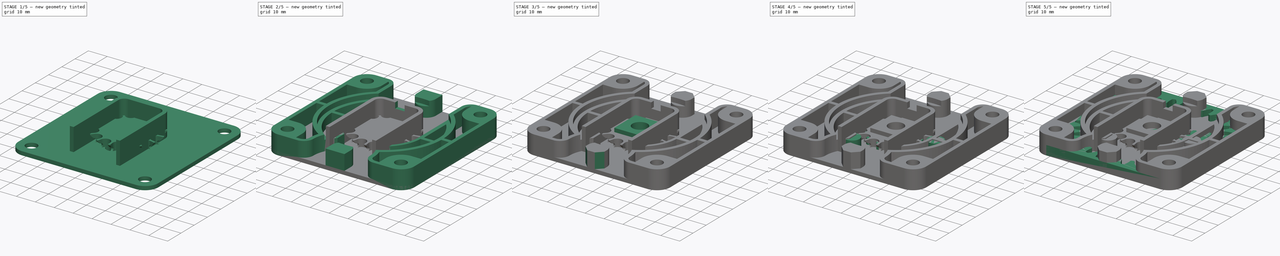
[diagram: build sequence overview — one tinted view per stage of 5, left to right]
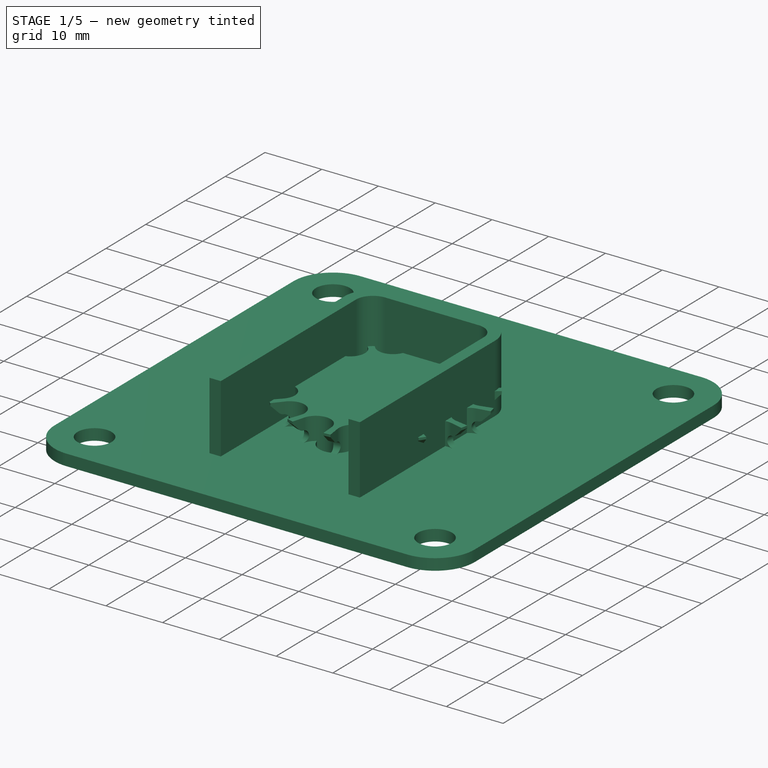
[diagram: stage 1 of 5 — iso view after this stage's code; geometry added in this stage tinted green]
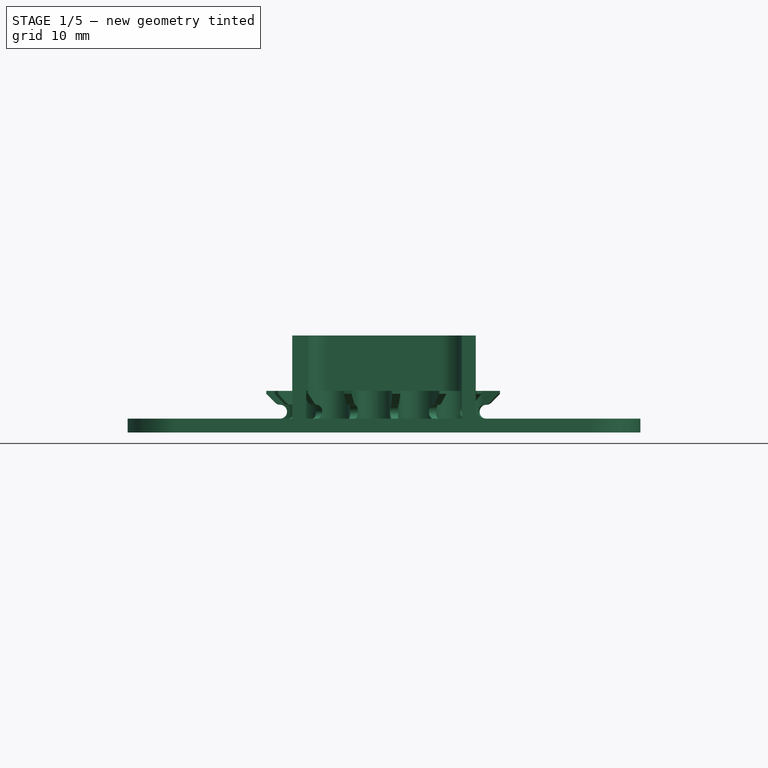
[diagram: stage 1 of 5 — front view after this stage's code; geometry added in this stage tinted green]
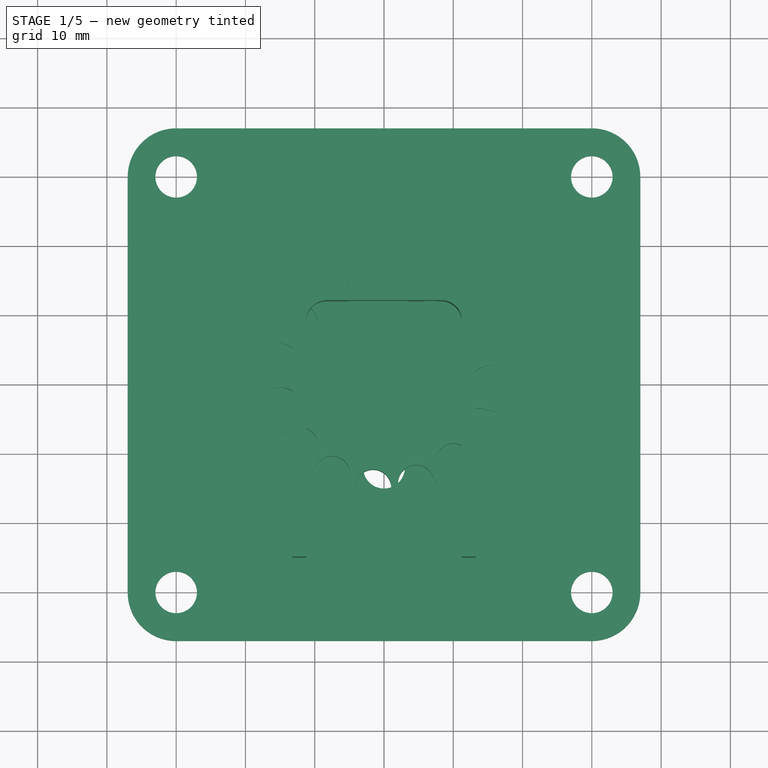
[diagram: stage 1 of 5 — top view after this stage's code; geometry added in this stage tinted green]
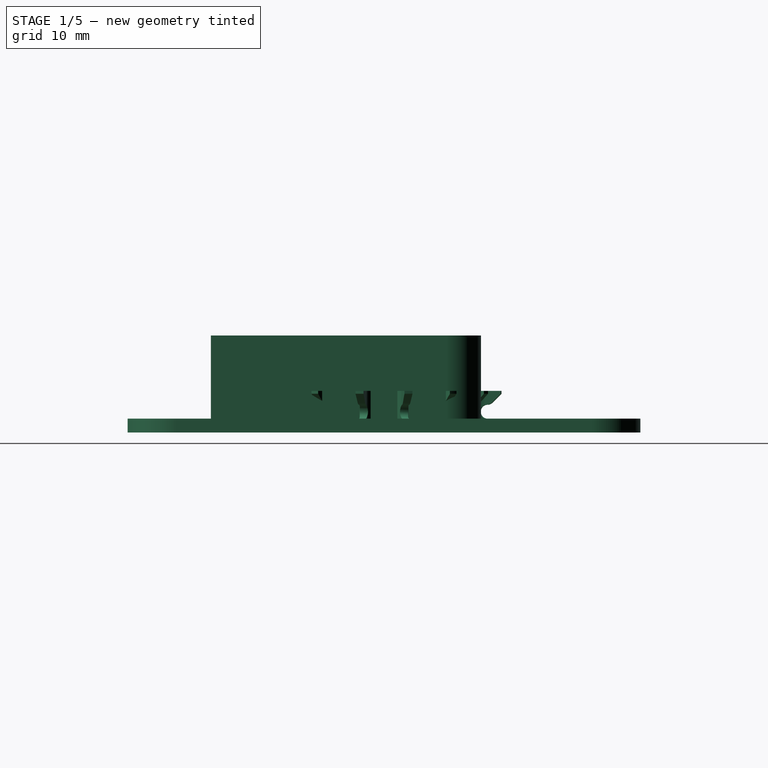
[diagram: stage 1 of 5 — right view after this stage's code; geometry added in this stage tinted green]
FCSTD DOCUMENT  (FreeCAD 0.19R24366 (Git))
Label: planetary_shutter_v2
License: All rights reserved
LicenseURL: http://en.wikipedia.org/wiki/All_rights_reserved
objects: Sketcher::SketchObject×13, PartDesign::Body×9, PartDesign::Pocket×8, PartDesign::Pad×7, PartDesign::Mirrored×4, Part::Part2DObjectPython×3, PartDesign::AdditiveCylinder×3, PartDesign::PolarPattern×3, PartDesign::MultiTransform×3, PartDesign::FeatureBase×2, PartDesign::SubtractiveBox×2, PartDesign::SubtractiveCylinder×2, PartDesign::Chamfer×1, PartDesign::Groove×1, PartDesign::AdditiveBox×1
note: 87 computed .brp shape members not serialized (recipe doc carries the construction recipe); baked Part::Feature solids carry a one-line shape summary decoded from their .brp

FEATURE [PartDesign::Body] Body005  label="Carrier"
  Group = -> [Sketch003,Pad004,Cylinder,PolarPattern,Box,Cylinder001,MultiTransform,Mirrored,PolarPattern001]
  Origin = -> Origin005
  Placement = pos=(0,0,-2) rot=(0,0,1;0rad)
  Tip = -> MultiTransform
FEATURE [PartDesign::AdditiveCylinder] Cylinder002
  Angle = 360
  AttacherType = Attacher::AttachEngine3D
  Height = 6
  MapMode = 5
  Radius = 17
  Support = -> [XY_Plane006]
FEATURE [Sketcher::SketchObject] Sketch010
  FullyConstrained = true
  MapMode = 5
  Support = -> [XY_Plane008]
  sketch-geometry (14):
    g0: LineSegment StartX=-30 StartY=37 StartZ=0 EndX=30 EndY=37 EndZ=0
    g1: LineSegment StartX=37 StartY=30 StartZ=0 EndX=37 EndY=-30 EndZ=0
    g2: LineSegment StartX=30 StartY=-37 StartZ=0 EndX=-30 EndY=-37 EndZ=0
    g3: LineSegment StartX=-37 StartY=-30 StartZ=0 EndX=-37 EndY=30 EndZ=0
    g4: ArcOfCircle CenterX=-30 CenterY=30 CenterZ=0 NormalX=0 NormalY=0 NormalZ=1 AngleXU=0 Radius=7 StartAngle=1.5708 EndAngle=3.14159
    g5: ArcOfCircle CenterX=30 CenterY=30 CenterZ=0 NormalX=0 NormalY=0 NormalZ=1 AngleXU=0 Radius=7 StartAngle=0 EndAngle=1.5708
    g6: ArcOfCircle CenterX=30 CenterY=-30 CenterZ=0 NormalX=0 NormalY=0 NormalZ=1 AngleXU=0 Radius=7 StartAngle=4.71239 EndAngle=6.28319
    g7: ArcOfCircle CenterX=-30 CenterY=-30 CenterZ=0 NormalX=0 NormalY=0 NormalZ=1 AngleXU=0 Radius=7 StartAngle=3.14159 EndAngle=4.71239
    g8: Circle CenterX=30 CenterY=30 CenterZ=0 NormalX=0 NormalY=0 NormalZ=1 AngleXU=0 Radius=3
    g9: Circle CenterX=30 CenterY=-30 CenterZ=0 NormalX=0 NormalY=0 NormalZ=1 AngleXU=0 Radius=3
    g10: Circle CenterX=-30 CenterY=-30 CenterZ=0 NormalX=0 NormalY=0 NormalZ=1 AngleXU=0 Radius=3
    g11: Circle CenterX=-30 CenterY=30 CenterZ=0 NormalX=0 NormalY=0 NormalZ=1 AngleXU=0 Radius=3
    g12: Circle CenterX=0 CenterY=0 CenterZ=0 NormalX=0 NormalY=0 NormalZ=1 AngleXU=0 Radius=3
    g13: Circle CenterX=0 CenterY=-12 CenterZ=0 NormalX=0 NormalY=0 NormalZ=1 AngleXU=0 Radius=3
  constraints (32):
    c: Horizontal(g0)
    c: Horizontal(g2)
    c: Vertical(g1)
    c: Vertical(g3)
    c: Tangent(g3,g4) = 1.5708
    c: Tangent(g0,g4) = 1.5708
    c: Tangent(g0,g5) = 1.5708
    c: Tangent(g1,g5) = 1.5708
    c: Tangent(g1,g6) = 1.5708
    c: Tangent(g2,g6) = 1.5708
    c: Tangent(g2,g7) = 1.5708
    c: Tangent(g3,g7) = 1.5708
    c: DistanceX(g3,g1) = 74
    c: Equal(g4,g5)
    c: Equal(g5,g7)
    c: Equal(g7,g6)
    c: Equal(g3,g0)
    c: Symmetric(g4,g6,g-1)
    c: Radius(g5) = 7
    c: Coincident(g8,g5)
    c: Coincident(g9,g6)
    c: Coincident(g10,g7)
    c: Coincident(g11,g4)
    c: Equal(g11,g8)
    c: Equal(g8,g9)
    c: Equal(g9,g10)
    c: Radius(g8) = 3
    c: Coincident(g12,g-1)
    c: Radius(g12) = 3
    c: PointOnObject(g13,g-2)
    c: Radius(g13) = 3
    c: DistanceY(g13,g12) = 12
FEATURE [PartDesign::Pad] Pad006
  Direction = (1,1,1)
  Length = 2
  Length2 = 100
  Profile = -> Sketch010
  Type = 0
FEATURE [PartDesign::Body] Body007  label="BodyBottom"
  Group = -> [Sketch004,Pad005,Pocket005,Sketch005,Pocket003,Sketch007,Sketch008,Pocket006,MultiTransform001,Mirrored001,Sketch009,Pocket007,MultiTransform002,Mirrored003,Mirrored004,Cylinder005,Chamfer]
  Origin = -> Origin007
  Placement = pos=(0,0,-10) rot=(0,0,1;0rad)
  Tip = -> Chamfer
FEATURE [Sketcher::SketchObject] Sketch011
  AttachmentOffset = pos=(0,0,2) rot=(0,0,1;0rad)
  FullyConstrained = true
  MapMode = 5
  Placement = pos=(0,0,2) rot=(0,0,1;0rad)
  Support = -> [XY_Plane008]
  sketch-geometry (12):
    g0: LineSegment StartX=-8.25 StartY=12 StartZ=0 EndX=8.25 EndY=12 EndZ=0
    g1: LineSegment StartX=11.25 StartY=9 StartZ=0 EndX=11.25 EndY=-25 EndZ=0
    g2: LineSegment StartX=-11.25 StartY=-25 StartZ=0 EndX=-11.25 EndY=9 EndZ=0
    g3: LineSegment StartX=-8.25 StartY=14 StartZ=0 EndX=8.25 EndY=14 EndZ=0
    g4: LineSegment StartX=13.25 StartY=9 StartZ=0 EndX=13.25 EndY=-25 EndZ=0
    g5: LineSegment StartX=13.25 StartY=-25 StartZ=0 EndX=11.25 EndY=-25 EndZ=0
    g6: LineSegment StartX=-13.25 StartY=-25 StartZ=0 EndX=-13.25 EndY=9 EndZ=0
    g7: LineSegment StartX=-11.25 StartY=-25 StartZ=0 EndX=-13.25 EndY=-25 EndZ=0
    g8: ArcOfCircle CenterX=8.25 CenterY=9 CenterZ=0 NormalX=0 NormalY=0 NormalZ=1 AngleXU=0 Radius=3 StartAngle=0 EndAngle=1.5708
    g9: ArcOfCircle CenterX=8.25 CenterY=9 CenterZ=0 NormalX=0 NormalY=0 NormalZ=1 AngleXU=0 Radius=5 StartAngle=0 EndAngle=1.5708
    g10: ArcOfCircle CenterX=-8.25 CenterY=9 CenterZ=0 NormalX=0 NormalY=0 NormalZ=1 AngleXU=0 Radius=3 StartAngle=1.5708 EndAngle=3.14159
    g11: ArcOfCircle CenterX=-8.25 CenterY=9 CenterZ=0 NormalX=0 NormalY=0 NormalZ=1 AngleXU=0 Radius=5 StartAngle=1.5708 EndAngle=3.14159
  constraints (30):
    c: Vertical(g1)
    c: Vertical(g2)
    c: Coincident(g4,g5)
    c: Coincident(g7,g6)
    c: Vertical(g4)
    c: Vertical(g6)
    c: Coincident(g5,g1)
    c: Coincident(g7,g2)
    c: Tangent(g5,g7)
    c: DistanceX(g2,g1) = 22.5
    c: DistanceX(g6,g2) = 2
    c: Tangent(g0,g8) = 1.5708
    c: Tangent(g1,g8) = 1.5708
    c: Tangent(g3,g9) = 1.5708
    c: Tangent(g4,g9) = 1.5708
    c: Tangent(g2,g10) = 1.5708
    c: Tangent(g0,g10) = 1.5708
    c: Tangent(g6,g11) = 1.5708
    c: Tangent(g3,g11) = 1.5708
    c: Equal(g10,g8)
    c: Equal(g11,g9)
    c: DistanceY(g0,g3) = 2
    c: Radius(g8) = 3
    c: Radius(g9) = 5
    c: Symmetric(g2,g1,g-2)
    c: Horizontal(g0)
    c: Horizontal(g3)
    c: DistanceY(g-1,g0) = 12
    c: DistanceY(g6,g0) = 37
    c: Symmetric(g6,g4,g-2)
FEATURE [PartDesign::Pad] Pad007
  BaseFeature = -> Pad006
  Direction = (1,1,1)
  Length = 12
  Length2 = 100
  Profile = -> Sketch011
  Type = 0
FEATURE [PartDesign::Body] Body008  label="BodyTop"
  Group = -> [Sketch010,Pad006,Sketch011,Pad007,Box002]
  Origin = -> Origin008
  Placement = pos=(0,0,5) rot=(0,0,1;0rad)
  Tip = -> Box002
FEATURE [Sketcher::SketchObject] Sketch012
  FullyConstrained = true
  MapMode = 5
  Support = -> [XY_Plane006]
  sketch-geometry (6):
    g0: ArcOfCircle CenterX=15 CenterY=0 CenterZ=0 NormalX=0 NormalY=0 NormalZ=1 AngleXU=0 Radius=2.60472 StartAngle=1.74533 EndAngle=4.53786
    g1: LineSegment StartX=0 StartY=0 StartZ=0 EndX=20 EndY=3.52654 EndZ=0
    g2: LineSegment StartX=0 StartY=0 StartZ=0 EndX=20 EndY=-3.52654 EndZ=0
    g3: LineSegment StartX=14.5477 StartY=2.56515 StartZ=0 EndX=20 EndY=3.52654 EndZ=0
    g4: LineSegment StartX=20 StartY=3.52654 StartZ=0 EndX=20 EndY=-3.52654 EndZ=0
    g5: LineSegment StartX=14.5477 StartY=-2.56515 StartZ=0 EndX=20 EndY=-3.52654 EndZ=0
  constraints (14):
    c: PointOnObject(g0,g-1)
    c: Coincident(g1,g-1)
    c: Coincident(g2,g1)
    c: Symmetric(g1,g2,g-1)
    c: Angle(g2,g1) = 0.349066
    c: DistanceX(g-1,g0) = 15
    c: Coincident(g3,g1)
    c: Coincident(g4,g3)
    c: Coincident(g4,g2)
    c: Coincident(g5,g4)
    c: PointOnObject(g0,g2)
    c: DistanceX(g-1,g4) = 20
    c: Tangent(g3,g0) = 1.5708
    c: Tangent(g5,g0) = -1.5708
FEATURE [PartDesign::Pocket] Pocket008
  BaseFeature = -> Cylinder002
  Length = 5
  Length2 = 100
  Midplane = true
  Profile = -> Sketch012
  Type = 1
FEATURE [PartDesign::PolarPattern] PolarPattern002
  Angle = 360
  Axis = -> Z_Axis006
  BaseFeature = -> Pocket008
  Occurrences = 15
  Originals = -> [Pocket008]
FEATURE [Sketcher::SketchObject] Sketch013
  FullyConstrained = false
  MapMode = 5
  Placement = pos=(0,0,0) rot=(1,0,0;1.5708rad)
  Support = -> [XZ_Plane006]
  sketch-geometry (7):
    g0: ArcOfCircle CenterX=15 CenterY=3 CenterZ=0 NormalX=0 NormalY=0 NormalZ=1 AngleXU=0 Radius=1 StartAngle=1.5708 EndAngle=4.71239
    g1: LineSegment StartX=0 StartY=3 StartZ=0 EndX=15.9893 EndY=3 EndZ=0
    g2: LineSegment StartX=17 StartY=5.58579 StartZ=0 EndX=17 EndY=0.414214 EndZ=0
    g3: ArcOfCircle CenterX=15 CenterY=5 CenterZ=0 NormalX=0 NormalY=0 NormalZ=1 AngleXU=0 Radius=1 StartAngle=4.71239 EndAngle=5.49779
    g4: ArcOfCircle CenterX=15 CenterY=1 CenterZ=0 NormalX=0 NormalY=0 NormalZ=1 AngleXU=0 Radius=1 StartAngle=0.785398 EndAngle=1.5708
    g5: LineSegment StartX=15.7071 StartY=4.29289 StartZ=0 EndX=17 EndY=5.58579 EndZ=0
    g6: LineSegment StartX=15.7071 StartY=1.70711 StartZ=0 EndX=17 EndY=0.414214 EndZ=0
  constraints (19):
    c: DistanceX(g-1,g0) = 15
    c: DistanceX(g-1,g2) = 17
    c: PointOnObject(g1,g-2)
    c: Horizontal(g1)
    c: DistanceY(g-1,g1) = 3
    c: PointOnObject(g0,g1)
    c: Symmetric(g2,g2,g1)
    c: Radius(g0) = 1
    c: Coincident(g5,g2)
    c: Coincident(g6,g2)
    c: Tangent(g6,g4) = 1.5708
    c: Tangent(g5,g3) = -1.5708
    c: Equal(g3,g4)
    c: Radius(g4) = 1
    c: Tangent(g4,g0) = 1.5708
    c: Tangent(g3,g0) = 1.5708
    c: Vertical(g3,g0)
    c: Vertical(g0,g4)
    c: Angle(g6,g5) = 1.5708
FEATURE [PartDesign::Groove] Groove
  Angle = 360
  Axis = (0,-2e-16,1)
  Base = (0,0,0)
  BaseFeature = -> PolarPattern002
  Profile = -> Sketch013
  ReferenceAxis = -> Sketch013 [V_Axis]
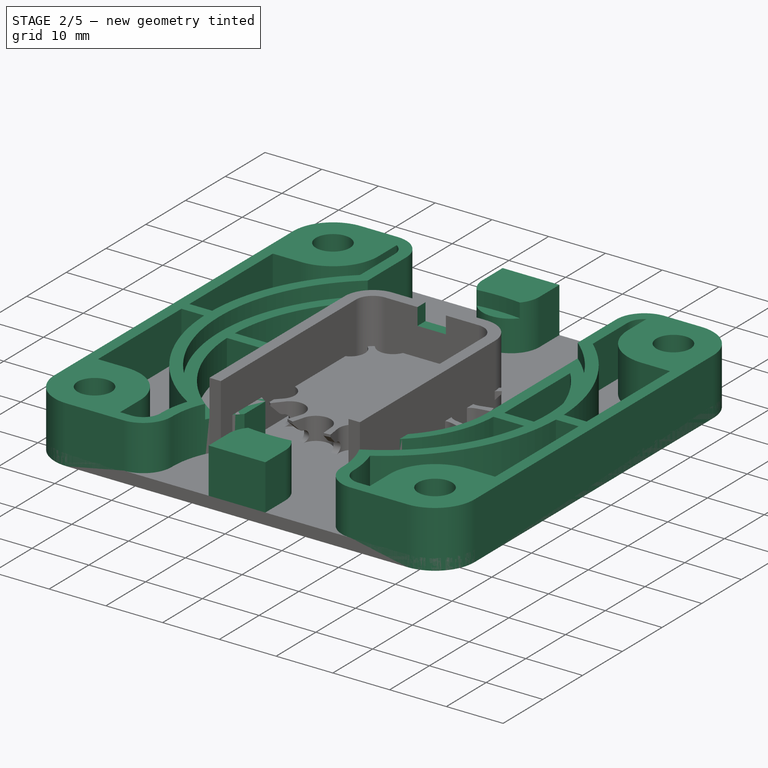
[diagram: stage 2 of 5 — iso view after this stage's code; geometry added in this stage tinted green]
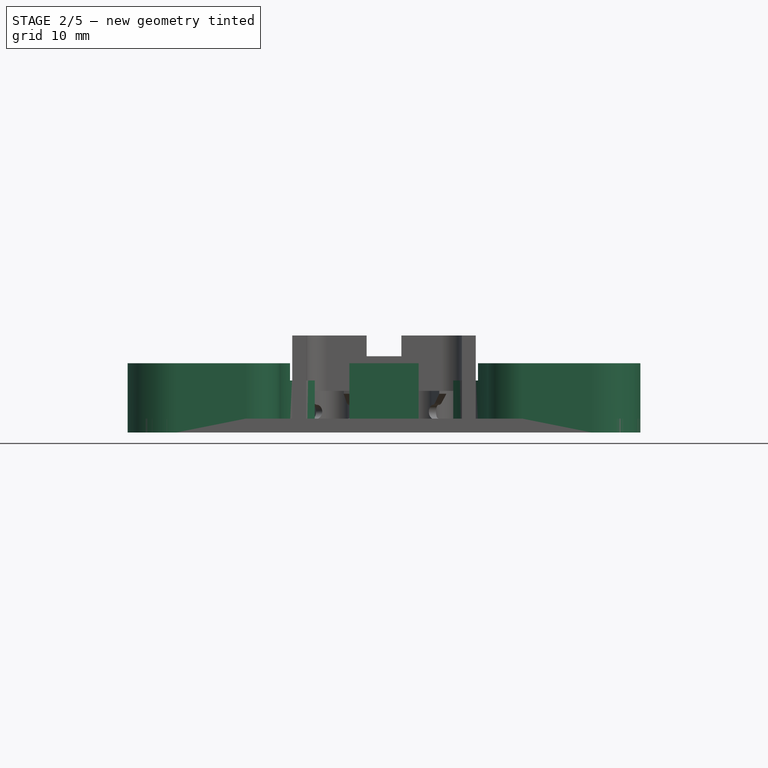
[diagram: stage 2 of 5 — front view after this stage's code; geometry added in this stage tinted green]
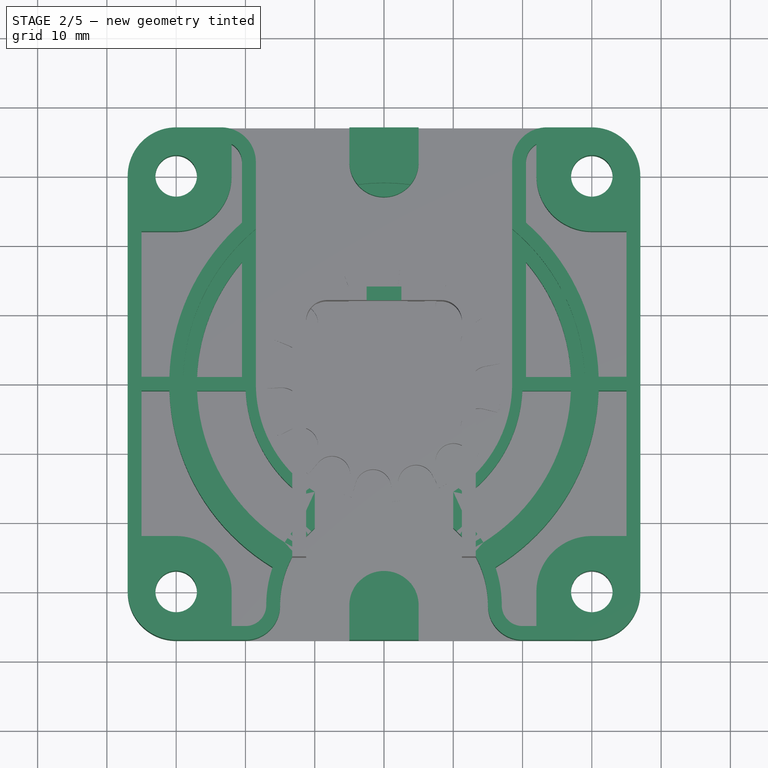
[diagram: stage 2 of 5 — top view after this stage's code; geometry added in this stage tinted green]
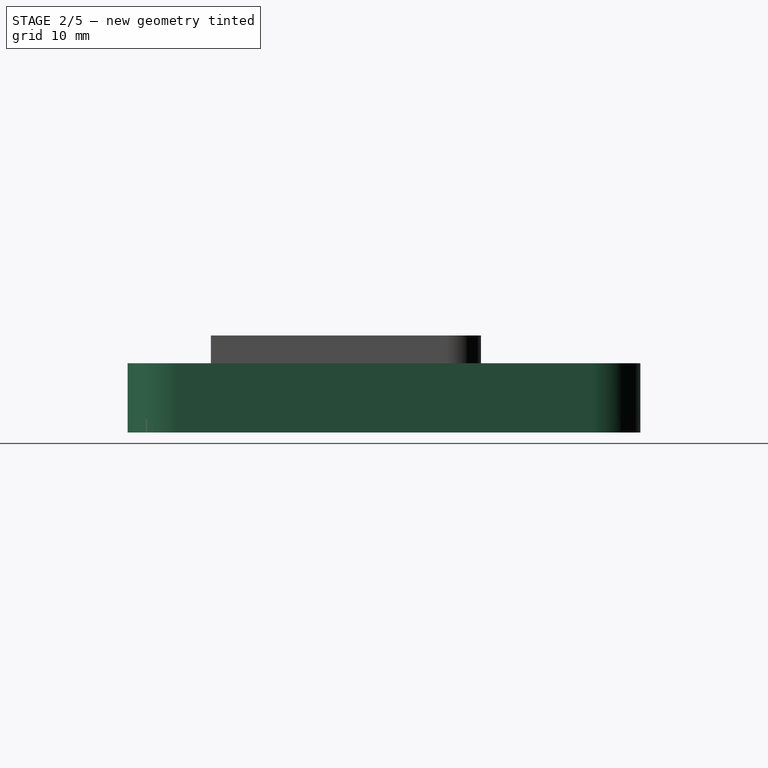
[diagram: stage 2 of 5 — right view after this stage's code; geometry added in this stage tinted green]
FEATURE [Sketcher::SketchObject] Sketch004
  FullyConstrained = true
  MapMode = 5
  sketch-geometry (12):
    g0: LineSegment StartX=-30 StartY=37 StartZ=0 EndX=30 EndY=37 EndZ=0
    g1: LineSegment StartX=37 StartY=30 StartZ=0 EndX=37 EndY=-30 EndZ=0
    g2: LineSegment StartX=30 StartY=-37 StartZ=0 EndX=-30 EndY=-37 EndZ=0
    g3: LineSegment StartX=-37 StartY=-30 StartZ=0 EndX=-37 EndY=30 EndZ=0
    g4: ArcOfCircle CenterX=-30 CenterY=30 CenterZ=0 NormalX=0 NormalY=0 NormalZ=1 AngleXU=0 Radius=7 StartAngle=1.5708 EndAngle=3.14159
    g5: ArcOfCircle CenterX=30 CenterY=30 CenterZ=0 NormalX=0 NormalY=0 NormalZ=1 AngleXU=0 Radius=7 StartAngle=1e-16 EndAngle=1.5708
    g6: ArcOfCircle CenterX=30 CenterY=-30 CenterZ=0 NormalX=0 NormalY=0 NormalZ=1 AngleXU=0 Radius=7 StartAngle=4.71239 EndAngle=6.28319
    g7: ArcOfCircle CenterX=-30 CenterY=-30 CenterZ=0 NormalX=0 NormalY=0 NormalZ=1 AngleXU=0 Radius=7 StartAngle=3.14159 EndAngle=4.71239
    g8: Circle CenterX=-30 CenterY=30 CenterZ=0 NormalX=0 NormalY=0 NormalZ=1 AngleXU=0 Radius=3
    g9: Circle CenterX=30 CenterY=30 CenterZ=0 NormalX=0 NormalY=0 NormalZ=1 AngleXU=0 Radius=3
    g10: Circle CenterX=30 CenterY=-30 CenterZ=0 NormalX=0 NormalY=0 NormalZ=1 AngleXU=0 Radius=3
    g11: Circle CenterX=-30 CenterY=-30 CenterZ=0 NormalX=0 NormalY=0 NormalZ=1 AngleXU=0 Radius=3
  constraints (27):
    c: Horizontal(g0)
    c: Horizontal(g2)
    c: Vertical(g1)
    c: Vertical(g3)
    c: Equal(g0,g3)
    c: Tangent(g3,g4) = 1.5708
    c: Tangent(g0,g4) = 1.5708
    c: Tangent(g0,g5) = 1.5708
    c: Tangent(g1,g5) = 1.5708
    c: Tangent(g1,g6) = 1.5708
    c: Tangent(g2,g6) = 1.5708
    c: Tangent(g2,g7) = 1.5708
    c: Tangent(g3,g7) = 1.5708
    c: Equal(g7,g4)
    c: Equal(g4,g5)
    c: Equal(g5,g6)
    c: Radius(g5) = 7
    c: Coincident(g8,g4)
    c: Coincident(g9,g5)
    c: Coincident(g10,g6)
    c: Coincident(g11,g7)
    c: Equal(g11,g8)
    c: Equal(g8,g9)
    c: Equal(g9,g10)
    c: Radius(g10) = 3
    c: Symmetric(g4,g6,g-1)
    c: DistanceX(g7,g6) = 60
FEATURE [PartDesign::Pad] Pad005
  Direction = (1,1,1)
  Length = 10
  Length2 = 100
  Profile = -> Sketch004
  Type = 0
FEATURE [Sketcher::SketchObject] Sketch005
  ExternalGeometry = -> [Pad005]
  FullyConstrained = true
  MapMode = 5
  Placement = pos=(0,0,10) rot=(0,0,1;0rad)
  Support = -> [Pad005]
  sketch-geometry (22):
    g0: ArcOfCircle CenterX=0 CenterY=0 CenterZ=0 NormalX=0 NormalY=0 NormalZ=1 AngleXU=0 Radius=18.5 StartAngle=3.14159 EndAngle=4.14131
    g1: ArcOfCircle CenterX=7e-16 CenterY=-32 CenterZ=0 NormalX=0 NormalY=0 NormalZ=1 AngleXU=0 Radius=15 StartAngle=0 EndAngle=0.841069
    g2: ArcOfCircle CenterX=20 CenterY=-32 CenterZ=0 NormalX=0 NormalY=0 NormalZ=1 AngleXU=0 Radius=5 StartAngle=3.14159 EndAngle=4.71239
    g3: ArcOfCircle CenterX=-20 CenterY=-32 CenterZ=0 NormalX=0 NormalY=0 NormalZ=1 AngleXU=0 Radius=5 StartAngle=4.71239 EndAngle=6.28319
    g4: ArcOfCircle CenterX=0 CenterY=0 CenterZ=0 NormalX=0 NormalY=0 NormalZ=1 AngleXU=0 Radius=18.5 StartAngle=5.28347 EndAngle=6.28319
    g5: LineSegment StartX=10 StartY=-15.5644 StartZ=0 EndX=10 EndY=-20.8197 EndZ=0
    g6: LineSegment StartX=-10 StartY=-15.5644 StartZ=0 EndX=-10 EndY=-20.8197 EndZ=0
    g7: ArcOfCircle CenterX=7e-16 CenterY=-32 CenterZ=0 NormalX=0 NormalY=0 NormalZ=1 AngleXU=0 Radius=15 StartAngle=2.30052 EndAngle=3.14159
    g8: LineSegment StartX=-23.5 StartY=37 StartZ=0 EndX=-5 EndY=37 EndZ=0
    g9: LineSegment StartX=-20 StartY=-37 StartZ=0 EndX=-5 EndY=-37 EndZ=0
    g10: ArcOfCircle CenterX=0 CenterY=32 CenterZ=0 NormalX=0 NormalY=0 NormalZ=1 AngleXU=0 Radius=5 StartAngle=3.14159 EndAngle=6.28319
    g11: LineSegment StartX=-5 StartY=37 StartZ=0 EndX=-5 EndY=32 EndZ=0
    g12: LineSegment StartX=5 StartY=32 StartZ=0 EndX=5 EndY=37 EndZ=0
    g13: LineSegment StartX=5 StartY=37 StartZ=0 EndX=23.5 EndY=37 EndZ=0
    g14: ArcOfCircle CenterX=7e-16 CenterY=-32 CenterZ=0 NormalX=0 NormalY=0 NormalZ=1 AngleXU=0 Radius=5 StartAngle=0 EndAngle=3.14159
    g15: LineSegment StartX=5 StartY=-32 StartZ=0 EndX=5 EndY=-37 EndZ=0
    g16: LineSegment StartX=-5 StartY=-32 StartZ=0 EndX=-5 EndY=-37 EndZ=0
    g17: LineSegment StartX=5 StartY=-37 StartZ=0 EndX=20 EndY=-37 EndZ=0
    g18: LineSegment StartX=18.5 StartY=0 StartZ=0 EndX=18.5 EndY=32 EndZ=0
    g19: LineSegment StartX=-18.5 StartY=2.3e-15 StartZ=0 EndX=-18.5 EndY=32 EndZ=0
    g20: ArcOfCircle CenterX=-23.5 CenterY=32 CenterZ=0 NormalX=0 NormalY=0 NormalZ=1 AngleXU=0 Radius=5 StartAngle=0 EndAngle=1.5708
    g21: ArcOfCircle CenterX=23.5 CenterY=32 CenterZ=0 NormalX=0 NormalY=0 NormalZ=1 AngleXU=0 Radius=5 StartAngle=1.5708 EndAngle=3.14159
  constraints (67):
    c: Coincident(g0,g-1)
    c: Radius(g0) = 18.5
    c: Coincident(g2,g1)
    c: Coincident(g3,g7)
    c: Horizontal(g2,g1)
    c: Horizontal(g3,g7)
    c: Vertical(g2,g2)
    c: Vertical(g3,g3)
    c: Equal(g0,g4)
    c: Coincident(g0,g4)
    c: Coincident(g5,g4)
    c: Coincident(g6,g0)
    c: Coincident(g1,g5)
    c: Coincident(g7,g6)
    c: Coincident(g1,g7)
    c: Symmetric(g6,g1,g-2)
    c: DistanceX(g6,g1) = 20
    c: DistanceX(g3,g2) = 40
    c: Coincident(g9,g3)
    c: Coincident(g17,g2)
    c: Symmetric(g3,g2,g-2)
    c: Symmetric(g3,g1,g1)
    c: PointOnObject(g13,g-3)
    c: PointOnObject(g8,g-3)
    c: PointOnObject(g2,g-4)
    c: Vertical(g11)
    c: Coincident(g12,g10)
    c: Vertical(g12)
    c: Diameter(g10) = 10
    c: Coincident(g8,g11)
    c: Coincident(g13,g12)
    c: Tangent(g8,g13)
    c: Coincident(g14,g1)
    c: Coincident(g15,g14)
    c: Vertical(g15)
    c: Equal(g10,g14)
    c: Coincident(g16,g14)
    c: Vertical(g16)
    c: Coincident(g9,g16)
    c: Coincident(g17,g15)
    c: Tangent(g9,g17)
    c: Coincident(g11,g10)
    c: Horizontal(g10,g10)
    c: Horizontal(g3,g14)
    c: Distance(g1,g-4) = 5
    c: Horizontal(g1,g14)
    c: Vertical(g6)
    c: Vertical(g5)
    c: Distance(g10,g-3) = 5
    c: PointOnObject(g10,g-2)
    c: PointOnObject(g0,g-1)
    c: PointOnObject(g4,g-1)
    c: Coincident(g18,g4)
    c: Vertical(g18)
    c: Coincident(g19,g0)
    c: Vertical(g19)
    c: Coincident(g20,g19)
    c: Coincident(g20,g8)
    c: Coincident(g21,g18)
    c: Coincident(g21,g13)
    c: Horizontal(g21,g18)
    c: Horizontal(g20,g19)
    c: Vertical(g8,g20)
    c: Vertical(g13,g21)
    c: Equal(g20,g21)
    c: Equal(g21,g10)
    c: Horizontal(g10,g10)
FEATURE [Sketcher::SketchObject] Sketch007
  FullyConstrained = true
  MapMode = 5
  Placement = pos=(0,0,10) rot=(0,0,1;0rad)
  Support = -> [Pad005]
  sketch-geometry (1):
    g0: Circle CenterX=0 CenterY=0 CenterZ=0 NormalX=0 NormalY=0 NormalZ=1 AngleXU=0 Radius=29
  constraints (2):
    c: Coincident(g0,g-1)
    c: Radius(g0) = 29
FEATURE [PartDesign::Pocket] Pocket005
  BaseFeature = -> Pad005
  Length = 2.5
  Length2 = 100
  Profile = -> Sketch007
  Type = 0
FEATURE [PartDesign::Pocket] Pocket003
  BaseFeature = -> Pocket005
  Length = 8
  Length2 = 100
  Profile = -> Sketch005
  Type = 0
FEATURE [Sketcher::SketchObject] Sketch008
  ExternalGeometry = -> [Pocket003]
  FullyConstrained = true
  MapMode = 5
  Placement = pos=(0,0,10) rot=(0,0,1;0rad)
  Support = -> [Pocket003]
  sketch-geometry (25):
    g0: ArcOfCircle CenterX=0 CenterY=0 CenterZ=0 NormalX=0 NormalY=0 NormalZ=1 AngleXU=0 Radius=27 StartAngle=0.0370455 EndAngle=0.708622
    g1: ArcOfCircle CenterX=0 CenterY=0 CenterZ=0 NormalX=0 NormalY=0 NormalZ=1 AngleXU=0 Radius=31 StartAngle=0.0322637 EndAngle=0.848259
    g2: ArcOfCircle CenterX=30 CenterY=30 CenterZ=0 NormalX=0 NormalY=0 NormalZ=1 AngleXU=0 Radius=8 StartAngle=3.14159 EndAngle=4.71239
    g3: ArcOfCircle CenterX=23.5 CenterY=32 CenterZ=0 NormalX=0 NormalY=0 NormalZ=1 AngleXU=0 Radius=3 StartAngle=2.0944 EndAngle=3.14159
    g4: LineSegment StartX=20.5 StartY=1 StartZ=0 EndX=26.9815 EndY=1 EndZ=0
    g5: LineSegment StartX=30.9839 StartY=1 StartZ=0 EndX=35 EndY=1 EndZ=0
    g6: LineSegment StartX=35 StartY=1 StartZ=0 EndX=35 EndY=22 EndZ=0
    g7: LineSegment StartX=35 StartY=22 StartZ=0 EndX=30 EndY=22 EndZ=0
    g8: LineSegment StartX=22 StartY=30 StartZ=0 EndX=22 EndY=34.5981 EndZ=0
    g9: LineSegment StartX=20.5 StartY=32 StartZ=0 EndX=20.5 EndY=23.254 EndZ=0
    g10: LineSegment StartX=20.5 StartY=17.5713 StartZ=0 EndX=20.5 EndY=1 EndZ=0
    g11: LineSegment StartX=19.975 StartY=-1 StartZ=0 EndX=26.9815 EndY=-1 EndZ=0
    g12: LineSegment StartX=30.9839 StartY=-1 StartZ=0 EndX=35 EndY=-1 EndZ=0
    g13: LineSegment StartX=35 StartY=-1 StartZ=0 EndX=35 EndY=-22 EndZ=0
    g14: LineSegment StartX=35 StartY=-22 StartZ=0 EndX=30 EndY=-22 EndZ=0
    g15: LineSegment StartX=22 StartY=-30 StartZ=0 EndX=22 EndY=-35 EndZ=0
    g16: LineSegment StartX=22 StartY=-35 StartZ=0 EndX=20 EndY=-35 EndZ=0
    g17: LineSegment StartX=12 StartY=-19.9584 StartZ=0 EndX=12 EndY=-16 EndZ=0
    g18: ArcOfCircle CenterX=0 CenterY=0 CenterZ=0 NormalX=0 NormalY=0 NormalZ=1 AngleXU=0 Radius=20 StartAngle=5.35589 EndAngle=6.23316
    g19: ArcOfCircle CenterX=0 CenterY=0 CenterZ=0 NormalX=0 NormalY=0 NormalZ=1 AngleXU=0 Radius=27 StartAngle=5.27245 EndAngle=6.24614
    g20: ArcOfCircle CenterX=0 CenterY=0 CenterZ=0 NormalX=0 NormalY=0 NormalZ=1 AngleXU=0 Radius=31 StartAngle=5.25795 EndAngle=6.25092
    g21: ArcOfCircle CenterX=7e-16 CenterY=-32 CenterZ=0 NormalX=0 NormalY=0 NormalZ=1 AngleXU=0 Radius=17 StartAngle=0.566598 EndAngle=0.787128
    g22: ArcOfCircle CenterX=7e-16 CenterY=-32 CenterZ=0 NormalX=0 NormalY=0 NormalZ=1 AngleXU=0 Radius=17 StartAngle=5.22689e-09 EndAngle=0.329457
    g23: ArcOfCircle CenterX=20 CenterY=-32 CenterZ=0 NormalX=0 NormalY=0 NormalZ=1 AngleXU=0 Radius=3 StartAngle=3.14159 EndAngle=4.71239
    g24: ArcOfCircle CenterX=30 CenterY=-30 CenterZ=0 NormalX=0 NormalY=0 NormalZ=1 AngleXU=0 Radius=8 StartAngle=1.5708 EndAngle=3.14159
  constraints (77):
    c: Coincident(g2,g-5)
    c: Coincident(g3,g-4)
    c: Radius(g2) = 8
    c: Coincident(g6,g5)
    c: Vertical(g6)
    c: Coincident(g7,g6)
    c: Coincident(g7,g2)
    c: Coincident(g8,g2)
    c: Coincident(g9,g3)
    c: Coincident(g9,g1)
    c: Coincident(g10,g0)
    c: Radius(g-4) = 5
    c: Radius(g3) = 3
    c: Vertical(g8)
    c: Horizontal(g2,g2)
    c: Vertical(g2,g2)
    c: Horizontal(g7)
    c: Distance(g5,g-7) = 2
    c: Vertical(g10)
    c: Vertical(g9)
    c: Radius(g0) = 27
    c: Radius(g1) = 31
    c: Horizontal(g3,g3)
    c: Coincident(g10,g4)
    c: Coincident(g1,g0)
    c: Coincident(g0,g-1)
    c: Radius(g-8) = 29
    c: Distance(g4,g-9) = 2
    c: Coincident(g8,g3)
    c: Horizontal(g12)
    c: Coincident(g13,g12)
    c: Vertical(g13)
    c: Coincident(g14,g13)
    c: Horizontal(g14)
    c: Vertical(g15)
    c: Coincident(g16,g15)
    c: Horizontal(g16)
    c: Vertical(g17)
    c: Coincident(g18,g0)
    c: Coincident(g18,g17)
    c: Coincident(g18,g11)
    c: Symmetric(g1,g12,g-1)
    c: Coincident(g19,g0)
    c: Coincident(g19,g11)
    c: Coincident(g20,g0)
    c: Coincident(g20,g12)
    c: Coincident(g21,g-14)
    c: Coincident(g21,g19)
    c: Coincident(g21,g17)
    c: Coincident(g22,g21)
    c: Coincident(g22,g20)
    c: Coincident(g23,g-15)
    c: Coincident(g23,g22)
    c: Coincident(g23,g16)
    c: Coincident(g24,g-10)
    c: Coincident(g24,g15)
    c: Coincident(g24,g14)
    c: Equal(g2,g24)
    c: Vertical(g24,g14)
    c: Horizontal(g15,g24)
    c: Equal(g23,g3)
    c: Vertical(g5,g12)
    c: Radius(g-16) = 18.5
    c: Radius(g18) = 20
    c: Symmetric(g0,g11,g-1)
    c: Horizontal(g11)
    c: DistanceY(g12,g5) = 2
    c: Vertical(g16,g23)
    c: Distance(g17,g-12) = 2
    c: Radius(g-13) = 15
    c: Radius(g21) = 17
    c: Equal(g22,g21)
    c: Coincident(g1,g5)
    c: Horizontal(g5)
    c: Coincident(g4,g0)
    c: Horizontal(g4)
    c: Horizontal(g0,g1)
FEATURE [PartDesign::Pocket] Pocket006
  BaseFeature = -> Pocket003
  Length = 8
  Length2 = 100
  Profile = -> Sketch008
  Type = 0
FEATURE [PartDesign::Mirrored] Mirrored001
  MirrorPlane = -> Sketch008 [V_Axis]
FEATURE [PartDesign::MultiTransform] MultiTransform001
  BaseFeature = -> Pocket006
  Originals = -> [Pocket006]
  Transformations = -> [Mirrored001]
FEATURE [Sketcher::SketchObject] Sketch009
  FullyConstrained = false
  MapMode = 5
  Placement = pos=(0,0,0) rot=(1,0,0;3.14159rad)
  Support = -> [MultiTransform001]
  sketch-geometry (7):
    g0: LineSegment StartX=34.6188 StartY=30 StartZ=0 EndX=32.3094 EndY=34 EndZ=0
    g1: LineSegment StartX=32.3094 StartY=34 StartZ=0 EndX=27.6906 EndY=34 EndZ=0
    g2: LineSegment StartX=27.6906 StartY=34 StartZ=0 EndX=25.3812 EndY=30 EndZ=0
    g3: LineSegment StartX=25.3812 StartY=30 StartZ=0 EndX=27.6906 EndY=26 EndZ=0
    g4: LineSegment StartX=27.6906 StartY=26 StartZ=0 EndX=32.3094 EndY=26 EndZ=0
    g5: LineSegment StartX=32.3094 StartY=26 StartZ=0 EndX=34.6188 EndY=30 EndZ=0
    g6: Circle CenterX=30 CenterY=30 CenterZ=0 NormalX=0 NormalY=0 NormalZ=1 AngleXU=0 Radius=4.6188
  constraints (15):
    c: Coincident(g0,g1)
    c: Coincident(g1,g2)
    c: Coincident(g2,g3)
    c: Coincident(g3,g4)
    c: Coincident(g4,g5)
    c: Coincident(g5,g0)
    c: Equal(g0, g1-g5) x5
    c: PointOnObject(g0,g6)
    c: PointOnObject(g1,g6)
    c: PointOnObject(g2,g6)
    c: PointOnObject(g3,g6)
    c: PointOnObject(g4,g6)
    c: PointOnObject(g5,g6)
    c: Distance(g1,g3) = 8
    c: Horizontal(g1)
FEATURE [PartDesign::Pocket] Pocket007
  BaseFeature = -> MultiTransform001
  Length = 4
  Length2 = 100
  Profile = -> Sketch009
  Type = 0
FEATURE [PartDesign::SubtractiveBox] Box002
  AttacherType = Attacher::AttachEngine3D
  AttachmentOffset = pos=(-2.5,10,9) rot=(0,0,1;0rad)
  BaseFeature = -> Pad007
  Height = 4
  Length = 5
  MapMode = 5
  Placement = pos=(-2.5,10,11) rot=(0,0,1;0rad)
  Support = -> [Pad007]
  Width = 4
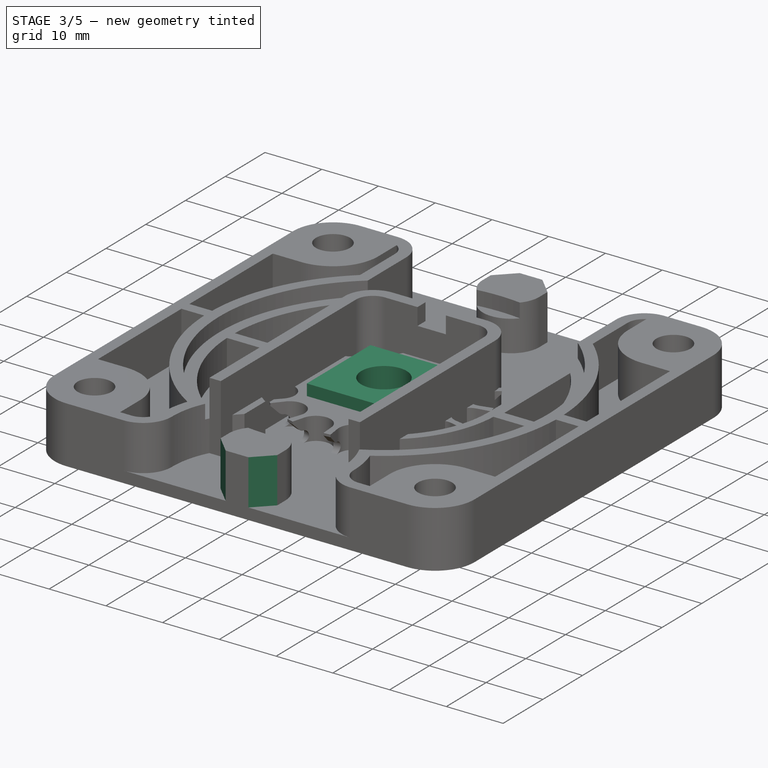
[diagram: stage 3 of 5 — iso view after this stage's code; geometry added in this stage tinted green]
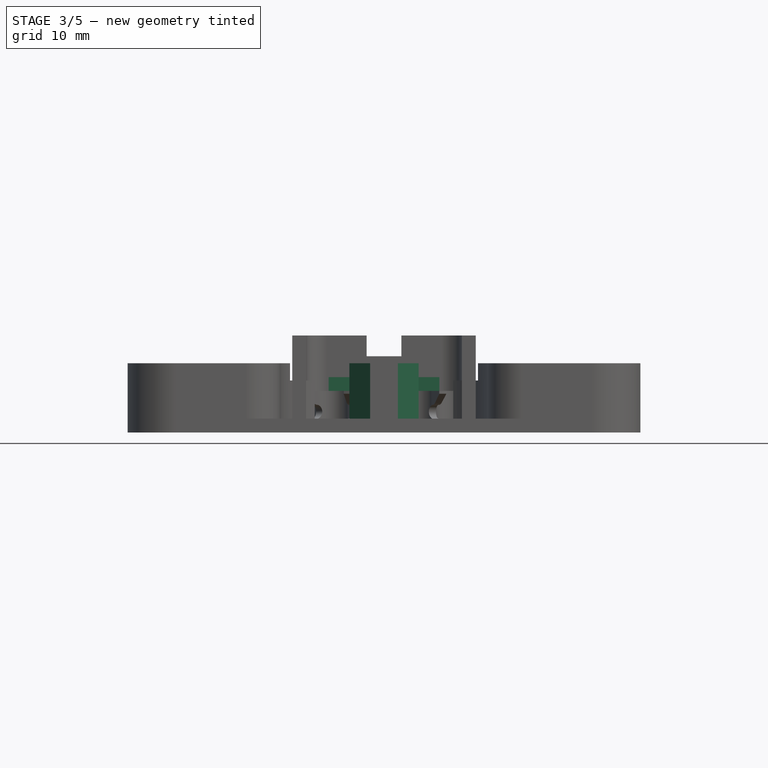
[diagram: stage 3 of 5 — front view after this stage's code; geometry added in this stage tinted green]
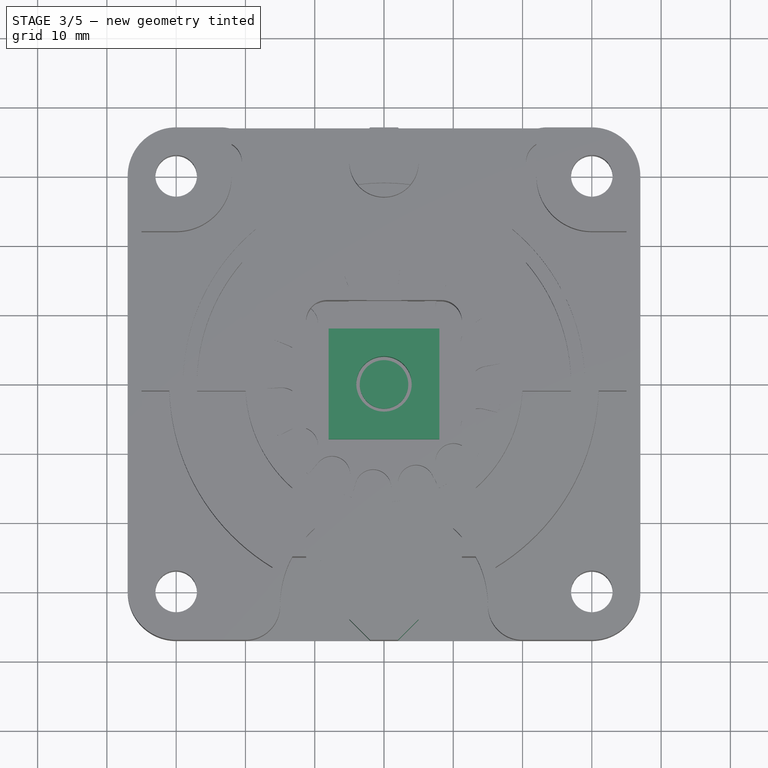
[diagram: stage 3 of 5 — top view after this stage's code; geometry added in this stage tinted green]
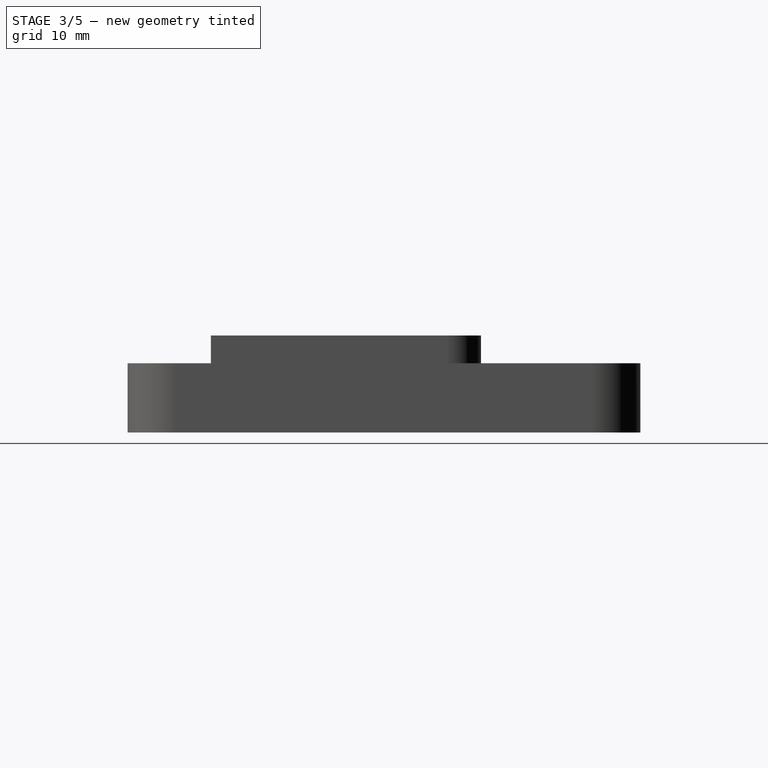
[diagram: stage 3 of 5 — right view after this stage's code; geometry added in this stage tinted green]
FEATURE [PartDesign::Body] Body004  label="PlanetRight"
  BaseFeature = -> Body
  Group = -> [Clone001]
  Origin = -> Origin004
  Placement = pos=(0,0,0) rot=(0,0,-1;2.0944rad)
  Tip = -> Clone001
FEATURE [Sketcher::SketchObject] Sketch003
  FullyConstrained = true
  MapMode = 5
  Support = -> [XY_Plane005]
  sketch-geometry (1):
    g0: Circle CenterX=0 CenterY=0 CenterZ=0 NormalX=0 NormalY=0 NormalZ=1 AngleXU=0 Radius=27
  constraints (2):
    c: Coincident(g0,g-1)
    c: Radius(g0) = 27
FEATURE [PartDesign::Pad] Pad004
  Direction = (1,1,1)
  Length = 2
  Length2 = 100
  Profile = -> Sketch003
  Type = 0
FEATURE [PartDesign::Mirrored] Mirrored003
  MirrorPlane = -> Sketch009 [V_Axis]
FEATURE [PartDesign::Mirrored] Mirrored004
  MirrorPlane = -> Sketch009 [H_Axis]
FEATURE [PartDesign::MultiTransform] MultiTransform002
  BaseFeature = -> Pocket007
  Originals = -> [Pocket007]
  Transformations = -> [Mirrored003,Mirrored004]
FEATURE [PartDesign::AdditiveCylinder] Cylinder005
  Angle = 360
  AttacherType = Attacher::AttachEngine3D
  BaseFeature = -> MultiTransform002
  Height = 4
  Radius = 3.5
FEATURE [PartDesign::Chamfer] Chamfer
  Angle = 45
  Base = -> Cylinder005 [Edge69,Edge71,Edge80,Edge82]
  BaseFeature = -> Cylinder005
  ChamferType = 0
  FlipDirection = false
  Size = 3
  Size2 = 1
  SupportTransform = false
FEATURE [PartDesign::AdditiveBox] Box001
  AttacherType = Attacher::AttachEngine3D
  AttachmentOffset = pos=(-8,-8,5) rot=(0,0,1;0rad)
  BaseFeature = -> Groove
  Height = 3
  Length = 16
  MapMode = 5
  Placement = pos=(-8,-8,5) rot=(0,0,1;0rad)
  Support = -> [XY_Plane006]
  Width = 16
FEATURE [PartDesign::SubtractiveCylinder] Cylinder004
  Angle = 360
  AttacherType = Attacher::AttachEngine3D
  AttachmentOffset = pos=(0,0,-1) rot=(0,0,1;0rad)
  BaseFeature = -> Box001
  Height = 10
  MapMode = 5
  Placement = pos=(0,0,-1) rot=(0,0,1;0rad)
  Radius = 4
  Support = -> [XY_Plane006]
FEATURE [PartDesign::Body] Body006  label="Roller"
  Group = -> [Cylinder002,Sketch012,Pocket008,PolarPattern002,Sketch013,Groove,Box001,Cylinder004]
  Origin = -> Origin006
  Placement = pos=(0,0,-8) rot=(0,0,1;0rad)
  Tip = -> Cylinder004
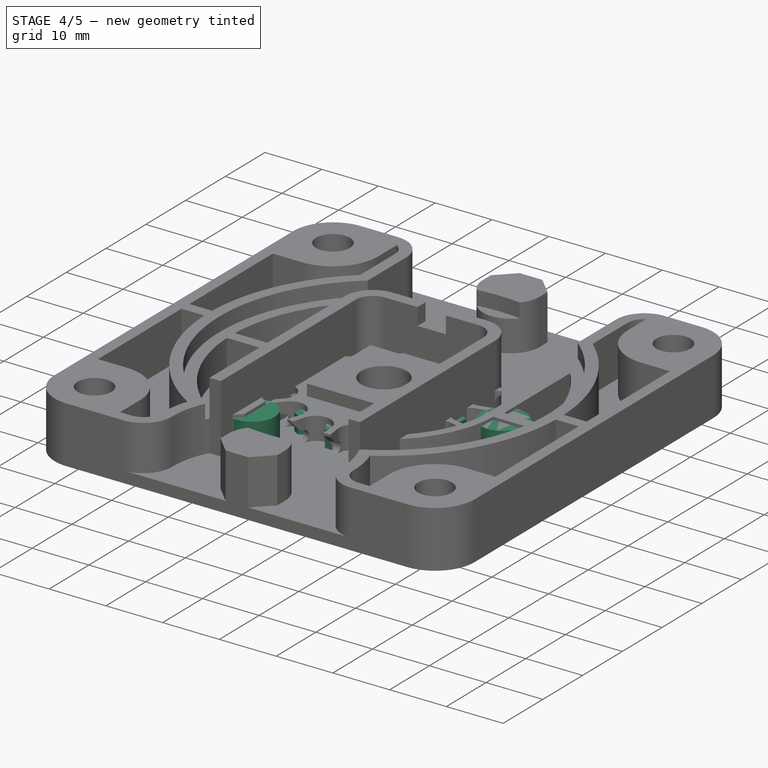
[diagram: stage 4 of 5 — iso view after this stage's code; geometry added in this stage tinted green]
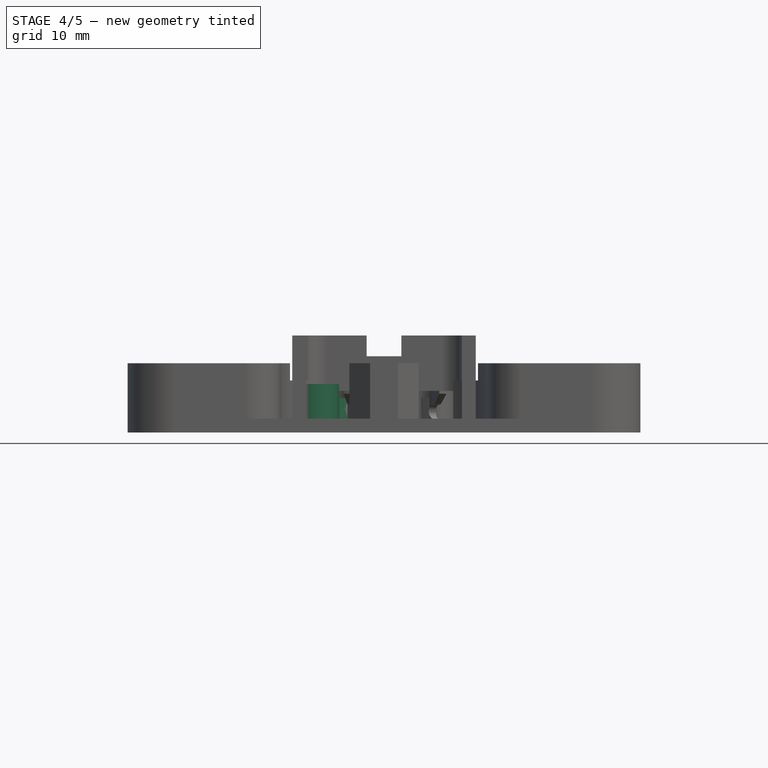
[diagram: stage 4 of 5 — front view after this stage's code; geometry added in this stage tinted green]
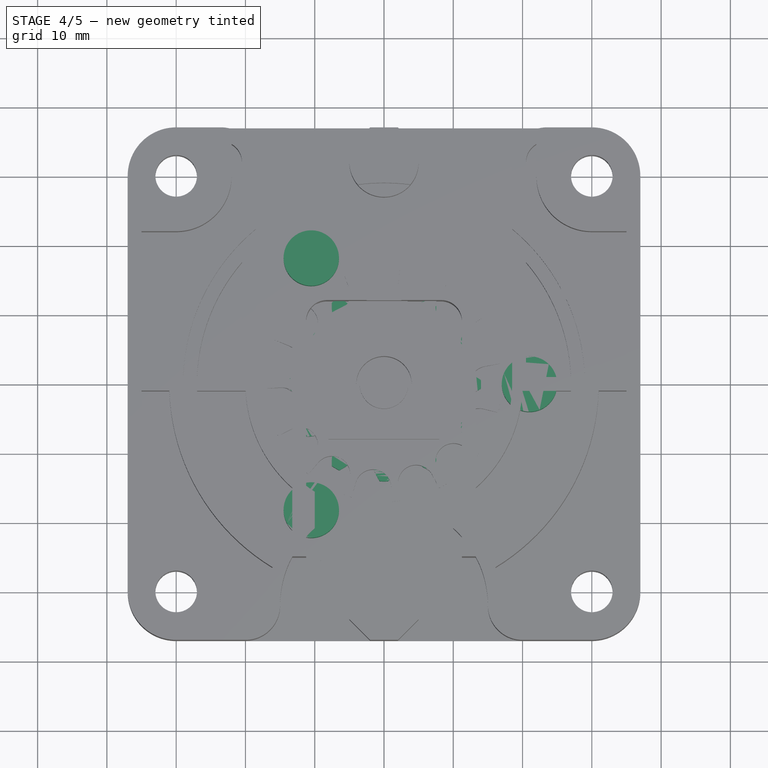
[diagram: stage 4 of 5 — top view after this stage's code; geometry added in this stage tinted green]
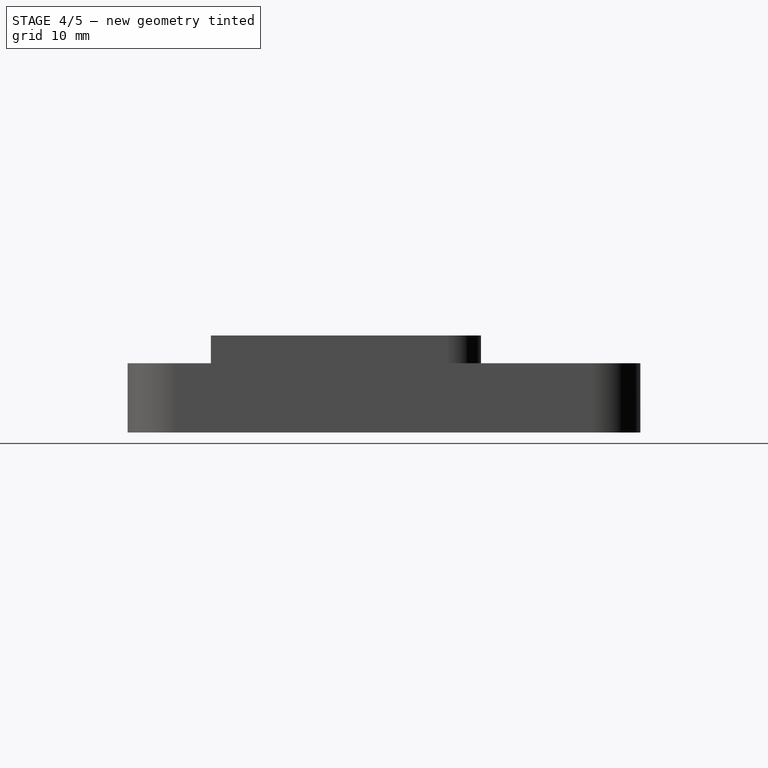
[diagram: stage 4 of 5 — right view after this stage's code; geometry added in this stage tinted green]
FEATURE [PartDesign::Body] Body001  label="SunGear"
  Group = -> [InvoluteGear001,Pad,Sketch,Pocket]
  Origin = -> Origin001
  Tip = -> Pocket
FEATURE [Part::Part2DObjectPython] InvoluteGear003  label="Gear001"  # Draft 2D object (typed FeaturePython)
  ExternalGear = true
  HighPrecision = true
  Modules = 2
  NumberOfTeeth = 12
  PressureAngle = 20
FEATURE [PartDesign::Pad] Pad001
  Direction = (1,1,1)
  Length = 5
  Length2 = 100
  Profile = -> InvoluteGear003
  Type = 0
FEATURE [Sketcher::SketchObject] Sketch001
  FullyConstrained = true
  MapMode = 5
  Support = -> [XY_Plane]
  sketch-geometry (1):
    g0: Circle CenterX=0 CenterY=0 CenterZ=0 NormalX=0 NormalY=0 NormalZ=1 AngleXU=0 Radius=4
  constraints (2):
    c: Coincident(g0,g-1)
    c: Diameter(g0) = 8
FEATURE [PartDesign::Pocket] Pocket001
  BaseFeature = -> Pad001
  Length = 5
  Length2 = 100
  Midplane = true
  Profile = -> Sketch001
  Type = 1
FEATURE [PartDesign::AdditiveCylinder] Cylinder
  Angle = 360
  AttacherType = Attacher::AttachEngine3D
  AttachmentOffset = pos=(21,0,1) rot=(0,0,1;0rad)
  BaseFeature = -> Pad004
  Height = 6
  MapMode = 2
  Placement = pos=(21,0,1) rot=(0,0,1;0rad)
  Radius = 4
  Support = -> [XY_Plane005]
FEATURE [PartDesign::PolarPattern] PolarPattern
  Angle = 360
  Axis = -> Z_Axis005
  BaseFeature = -> Cylinder
  Occurrences = 3
  Originals = -> [Cylinder]
  Placement = pos=(21,0,1) rot=(0,0,1;0rad)
FEATURE [PartDesign::SubtractiveBox] Box
  AttacherType = Attacher::AttachEngine3D
  AttachmentOffset = pos=(-8,-8,-2) rot=(0,0,1;0rad)
  BaseFeature = -> PolarPattern
  Height = 6
  Length = 16
  MapMode = 5
  Placement = pos=(-8,-8,-2) rot=(0,0,1;0rad)
  Support = -> [XY_Plane005]
  Width = 16
FEATURE [PartDesign::SubtractiveCylinder] Cylinder001
  Angle = 360
  AttacherType = Attacher::AttachEngine3D
  AttachmentOffset = pos=(-17,8,-1) rot=(0,0,1;0rad)
  BaseFeature = -> Box
  Height = 4
  MapMode = 5
  Placement = pos=(-17,8,-1) rot=(0,0,1;0rad)
  Radius = 6
  Support = -> [XY_Plane005]
FEATURE [PartDesign::Mirrored] Mirrored
  MirrorPlane = -> XZ_Plane005
  Placement = pos=(-17,8,-1) rot=(0,0,1;0rad)
FEATURE [PartDesign::PolarPattern] PolarPattern001
  Angle = 360
  Axis = -> Z_Axis005
  Occurrences = 3
  Placement = pos=(-17,8,-1) rot=(0,0,1;0rad)
FEATURE [PartDesign::MultiTransform] MultiTransform
  BaseFeature = -> Cylinder001
  Originals = -> [Cylinder001]
  Placement = pos=(-17,8,-1) rot=(0,0,1;0rad)
  Transformations = -> [Mirrored,PolarPattern001]
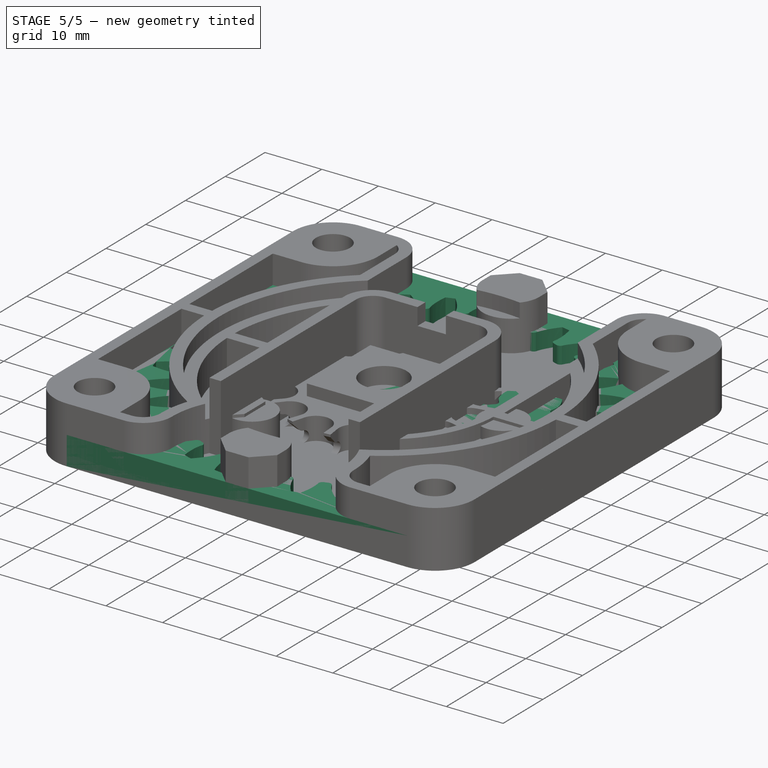
[diagram: stage 5 of 5 — iso view after this stage's code; geometry added in this stage tinted green]
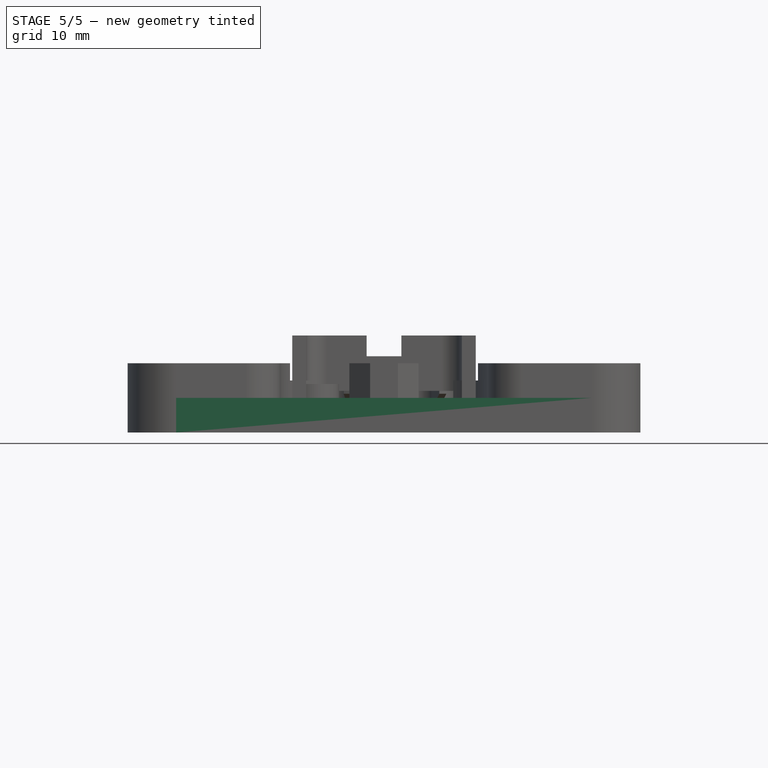
[diagram: stage 5 of 5 — front view after this stage's code; geometry added in this stage tinted green]
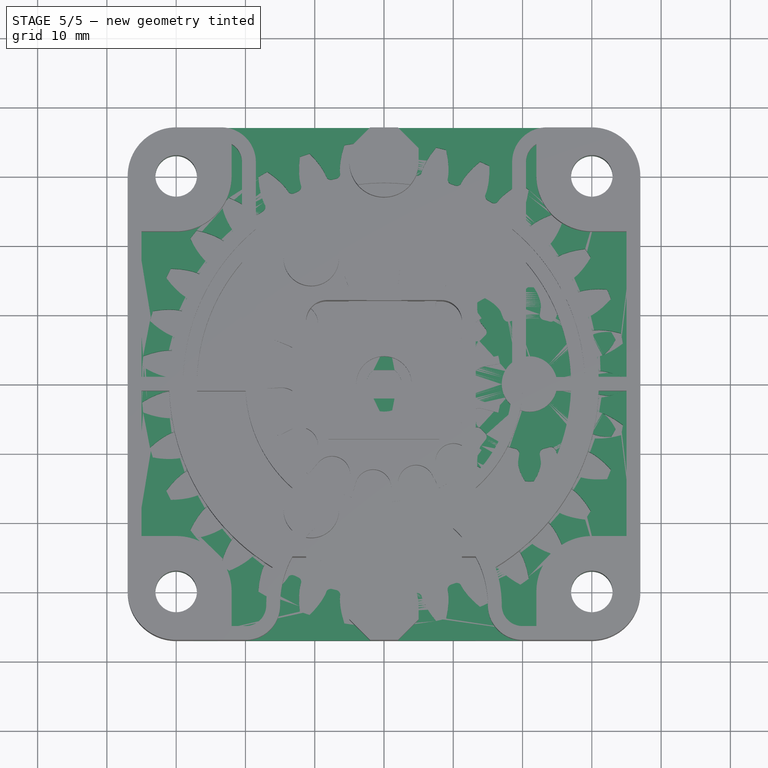
[diagram: stage 5 of 5 — top view after this stage's code; geometry added in this stage tinted green]
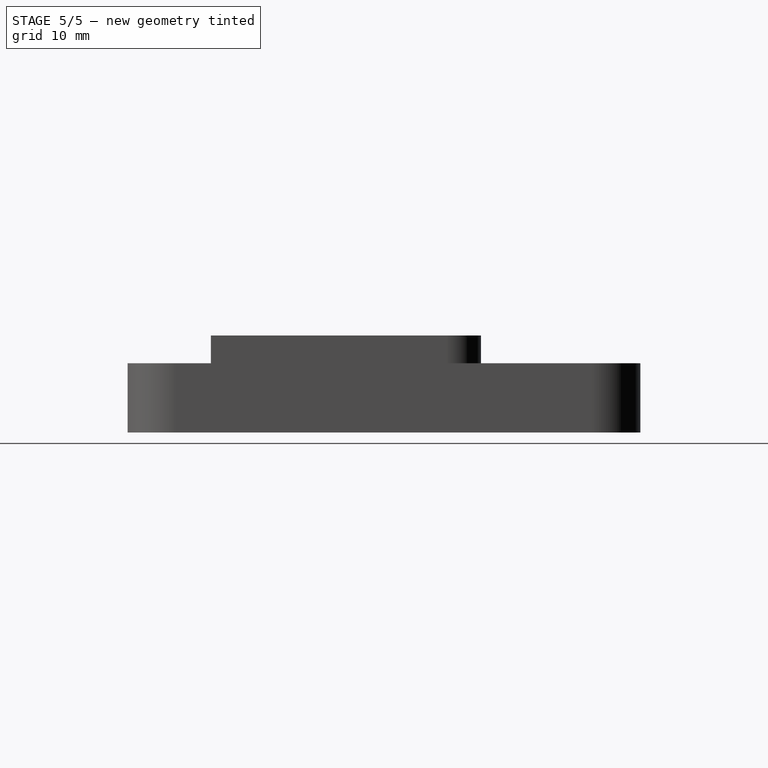
[diagram: stage 5 of 5 — right view after this stage's code; geometry added in this stage tinted green]
FEATURE [Part::Part2DObjectPython] InvoluteGear001  label="Gear"  # Draft 2D object (typed FeaturePython)
  ExternalGear = true
  HighPrecision = true
  Modules = 2
  NumberOfTeeth = 9
  Placement = pos=(0,0,0) rot=(0,0,1;0.349066rad)
  PressureAngle = 20
FEATURE [PartDesign::Pad] Pad
  Direction = (1,1,1)
  Length = 5
  Length2 = 100
  Placement = pos=(0,0,0) rot=(0,0,1;0.349066rad)
  Profile = -> InvoluteGear001
  Type = 0
FEATURE [Sketcher::SketchObject] Sketch
  FullyConstrained = true
  MapMode = 5
  Support = -> [XY_Plane001]
  sketch-geometry (4):
    g0: ArcOfCircle CenterX=0 CenterY=0 CenterZ=0 NormalX=0 NormalY=0 NormalZ=1 AngleXU=0 Radius=2.55 StartAngle=2.20773 EndAngle=4.07545
    g1: LineSegment StartX=-1.51658 StartY=2.05 StartZ=0 EndX=1.51658 EndY=2.05 EndZ=0
    g2: LineSegment StartX=-1.51658 StartY=-2.05 StartZ=0 EndX=1.51658 EndY=-2.05 EndZ=0
    g3: ArcOfCircle CenterX=0 CenterY=0 CenterZ=0 NormalX=0 NormalY=0 NormalZ=1 AngleXU=0 Radius=2.55 StartAngle=5.34933 EndAngle=7.21705
  constraints (12):
    c: Coincident(g0,g-1)
    c: Diameter(g0) = 5.1
    c: Horizontal(g1)
    c: Horizontal(g2)
    c: DistanceY(g2,g1) = 4.1
    c: Equal(g1,g2)
    c: Coincident(g0,g1)
    c: Coincident(g3,g1)
    c: Equal(g0,g3)
    c: Coincident(g0,g2)
    c: Coincident(g3,g2)
    c: Coincident(g0,g3)
FEATURE [PartDesign::Pocket] Pocket
  BaseFeature = -> Pad
  Length = 5
  Length2 = 100
  Midplane = true
  Placement = pos=(0,0,0) rot=(0,0,1;0.349066rad)
  Profile = -> Sketch
  Type = 1
FEATURE [PartDesign::Body] Body  label="PlanetGear"
  Group = -> [InvoluteGear003,Pad001,Sketch001,Pocket001]
  Origin = -> Origin
  Placement = pos=(21,0,0) rot=(0,0,1;0rad)
  Tip = -> Pocket001
FEATURE [Part::Part2DObjectPython] InvoluteGear004  label="Gear002"  # Draft 2D object (typed FeaturePython)
  ExternalGear = true
  HighPrecision = true
  Modules = 2
  NumberOfTeeth = 33
  PressureAngle = 20
FEATURE [Sketcher::SketchObject] Sketch002
  FullyConstrained = true
  MapMode = 5
  Support = -> [XY_Plane002]
  sketch-geometry (12):
    g0: LineSegment StartX=-30 StartY=37 StartZ=0 EndX=30 EndY=37 EndZ=0
    g1: LineSegment StartX=37 StartY=30 StartZ=0 EndX=37 EndY=-30 EndZ=0
    g2: LineSegment StartX=30 StartY=-37 StartZ=0 EndX=-30 EndY=-37 EndZ=0
    g3: LineSegment StartX=-37 StartY=-30 StartZ=0 EndX=-37 EndY=30 EndZ=0
    g4: ArcOfCircle CenterX=-30 CenterY=30 CenterZ=0 NormalX=0 NormalY=0 NormalZ=1 AngleXU=0 Radius=7 StartAngle=1.5708 EndAngle=3.14159
    g5: ArcOfCircle CenterX=30 CenterY=30 CenterZ=0 NormalX=0 NormalY=0 NormalZ=1 AngleXU=0 Radius=7 StartAngle=1e-16 EndAngle=1.5708
    g6: ArcOfCircle CenterX=30 CenterY=-30 CenterZ=0 NormalX=0 NormalY=0 NormalZ=1 AngleXU=0 Radius=7 StartAngle=4.71239 EndAngle=6.28319
    g7: ArcOfCircle CenterX=-30 CenterY=-30 CenterZ=0 NormalX=0 NormalY=0 NormalZ=1 AngleXU=0 Radius=7 StartAngle=3.14159 EndAngle=4.71239
    g8: Circle CenterX=-30 CenterY=30 CenterZ=0 NormalX=0 NormalY=0 NormalZ=1 AngleXU=0 Radius=3
    g9: Circle CenterX=30 CenterY=30 CenterZ=0 NormalX=0 NormalY=0 NormalZ=1 AngleXU=0 Radius=3
    g10: Circle CenterX=30 CenterY=-30 CenterZ=0 NormalX=0 NormalY=0 NormalZ=1 AngleXU=0 Radius=3
    g11: Circle CenterX=-30 CenterY=-30 CenterZ=0 NormalX=0 NormalY=0 NormalZ=1 AngleXU=0 Radius=3
  constraints (27):
    c: Horizontal(g0)
    c: Horizontal(g2)
    c: Vertical(g1)
    c: Vertical(g3)
    c: Equal(g0,g3)
    c: Tangent(g3,g4) = 1.5708
    c: Tangent(g0,g4) = 1.5708
    c: Tangent(g0,g5) = 1.5708
    c: Tangent(g1,g5) = 1.5708
    c: Tangent(g1,g6) = 1.5708
    c: Tangent(g2,g6) = 1.5708
    c: Tangent(g2,g7) = 1.5708
    c: Tangent(g3,g7) = 1.5708
    c: Equal(g7,g4)
    c: Equal(g4,g5)
    c: Equal(g5,g6)
    c: Radius(g5) = 7
    c: Coincident(g8,g4)
    c: Coincident(g9,g5)
    c: Coincident(g10,g6)
    c: Coincident(g11,g7)
    c: Equal(g11,g8)
    c: Equal(g8,g9)
    c: Equal(g9,g10)
    c: Radius(g10) = 3
    c: Symmetric(g4,g6,g-1)
    c: DistanceX(g7,g6) = 60
FEATURE [PartDesign::Pad] Pad003
  Direction = (1,1,1)
  Length = 5
  Length2 = 100
  Profile = -> Sketch002
  Type = 0
FEATURE [PartDesign::Pocket] Pocket002
  BaseFeature = -> Pad003
  Length = 5
  Length2 = 100
  Midplane = true
  Profile = -> InvoluteGear004
  Type = 1
FEATURE [PartDesign::Body] Body002  label="RingGear"
  Group = -> [Sketch002,Pad003,InvoluteGear004,Pocket002]
  Origin = -> Origin002
  Tip = -> Pocket002
FEATURE [PartDesign::FeatureBase] Clone
  BaseFeature = -> Body
  Placement = pos=(21,0,0) rot=(0,0,1;0rad)
FEATURE [PartDesign::Body] Body003  label="PlanetLeft"
  BaseFeature = -> Body
  Group = -> [Clone]
  Origin = -> Origin003
  Placement = pos=(0,0,0) rot=(0,0,1;2.0944rad)
  Tip = -> Clone
FEATURE [PartDesign::FeatureBase] Clone001
  BaseFeature = -> Body
  Placement = pos=(21,0,0) rot=(0,0,1;0rad)
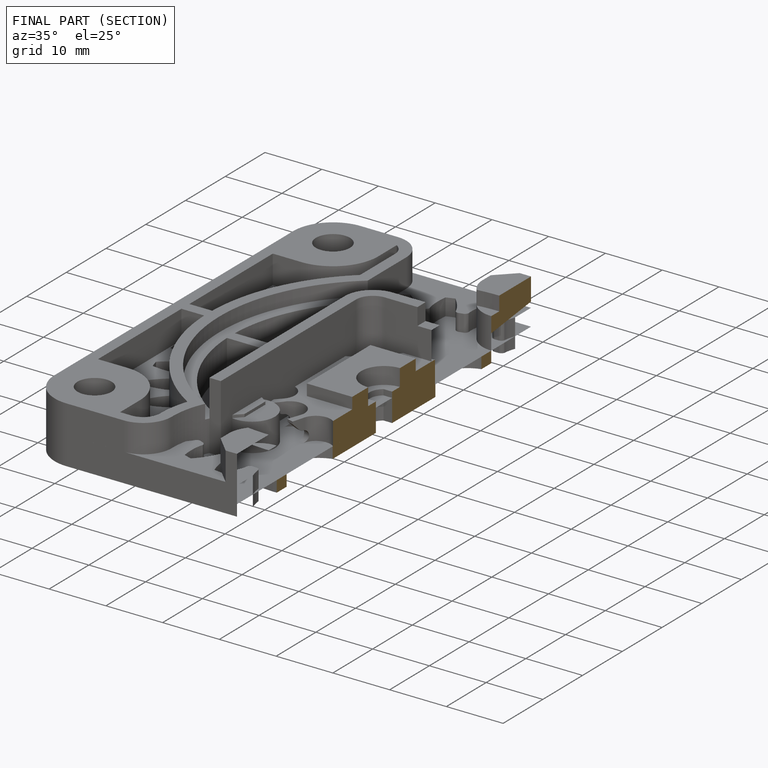
[diagram: finished part — half-section view (interior)]
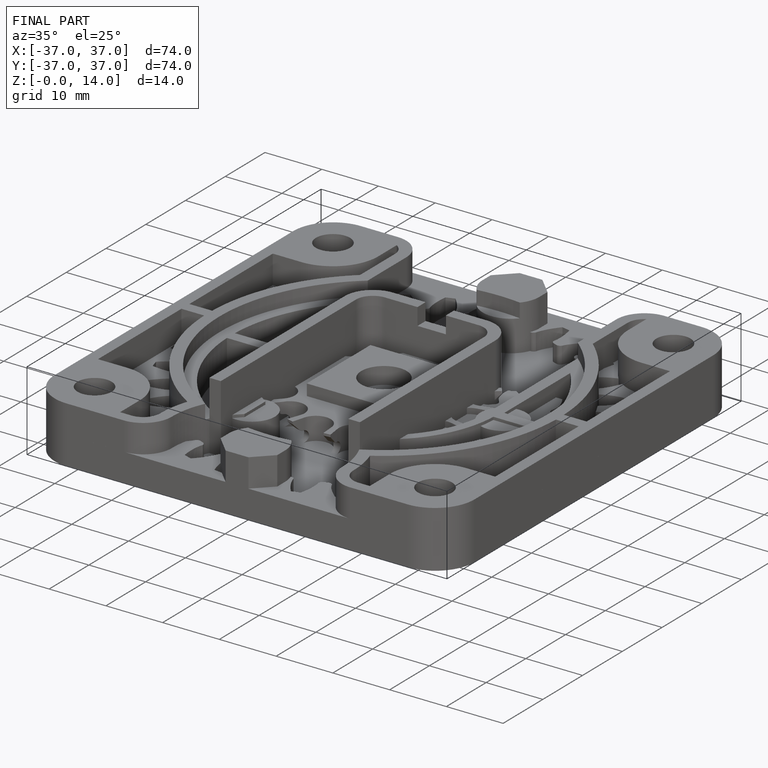
[diagram: finished part — iso view with bounding-box wireframe]
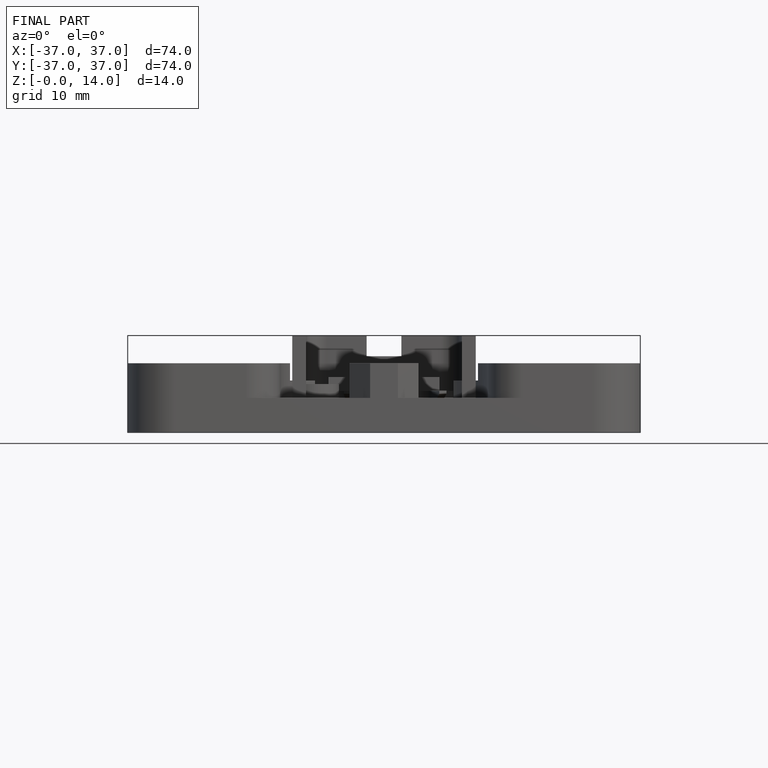
[diagram: finished part — front view with bounding-box wireframe]
